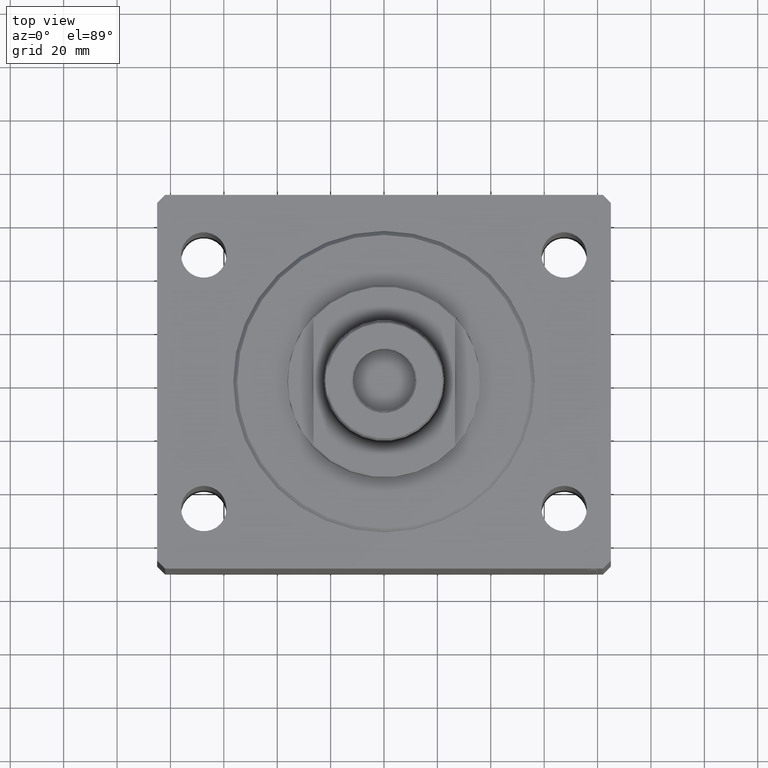
[diagram: clean part render]
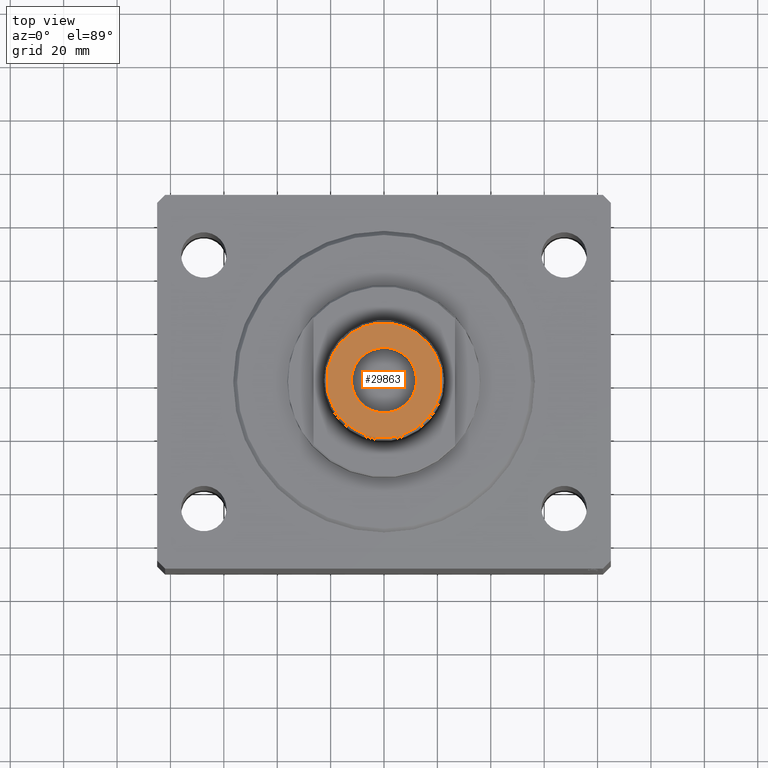
[diagram: same view with one face highlighted and labeled with its STEP entity id]
A machine part, top view. The second image highlights one B-rep face of the part: STEP entity #29863.
In plain terms, the highlighted planar face has unit normal (0, -0, 1).
Its self-contained STEP definition (entity closure, byte-faithful):
#153 = EDGE_CURVE ( 'NONE', #21452, #36592, #26354, .T. ) ;
#1114 = PLANE ( 'NONE',  #43194 ) ;
#3335 = EDGE_CURVE ( 'NONE', #11258, #27262, #42032, .T. ) ;
#4181 = EDGE_CURVE ( 'NONE', #11258, #29981, #43152, .T. ) ;
#6069 = DIRECTION ( 'NONE',  ( 1.000000000000000000, -0.000000000000000000, -0.000000000000000000 ) ) ;
#6117 = DIRECTION ( 'NONE',  ( 0.000000000000000000, 0.000000000000000000, -1.000000000000000000 ) ) ;
#6787 = EDGE_LOOP ( 'NONE', ( #29417, #23355, #8714, #17955 ) ) ;
#7364 = FACE_OUTER_BOUND ( 'NONE', #6787, .T. ) ;
#7537 = ORIENTED_EDGE ( 'NONE', *, *, #153, .T. ) ;
#7587 = DIRECTION ( 'NONE',  ( 1.000000000000000000, 0.000000000000000000, -0.000000000000000000 ) ) ;
#8714 = ORIENTED_EDGE ( 'NONE', *, *, #24355, .T. ) ;
#10436 = AXIS2_PLACEMENT_3D ( 'NONE', #26727, #30070, #40336 ) ;
#11258 = VERTEX_POINT ( 'NONE', #40930 ) ;
#11598 = DIRECTION ( 'NONE',  ( -0.000000000000000000, 0.000000000000000000, -1.000000000000000000 ) ) ;
#12031 = EDGE_CURVE ( 'NONE', #33867, #29981, #40039, .T. ) ;
#12110 = AXIS2_PLACEMENT_3D ( 'NONE', #27226, #6069, #19667 ) ;
#13701 = AXIS2_PLACEMENT_3D ( 'NONE', #39999, #23064, #6117 ) ;
#14137 = CARTESIAN_POINT ( 'NONE',  ( 0.000000000000000000, 4.609772228646120240, 21.00000000000000355 ) ) ;
#15108 = CARTESIAN_POINT ( 'NONE',  ( 0.000000000000000000, 0.000000000000000000, 21.00000000000000355 ) ) ;
#15522 = CARTESIAN_POINT ( 'NONE',  ( 0.000000000000000000, -7.916808551943042919E-15, 0.000000000000000000 ) ) ;
#17955 = ORIENTED_EDGE ( 'NONE', *, *, #12031, .T. ) ;
#18451 = DIRECTION ( 'NONE',  ( 0.000000000000000000, -1.000000000000000000, 0.000000000000000000 ) ) ;
#19667 = DIRECTION ( 'NONE',  ( 0.000000000000000000, 0.000000000000000000, -1.000000000000000000 ) ) ;
#19742 = DIRECTION ( 'NONE',  ( 0.000000000000000000, -1.000000000000000000, 0.000000000000000000 ) ) ;
#21452 = VERTEX_POINT ( 'NONE', #27168 ) ;
#23064 = DIRECTION ( 'NONE',  ( 1.000000000000000000, -0.000000000000000000, -0.000000000000000000 ) ) ;
#23355 = ORIENTED_EDGE ( 'NONE', *, *, #3335, .T. ) ;
#24244 = AXIS2_PLACEMENT_3D ( 'NONE', #15522, #42279, #42492 ) ;
#24355 = EDGE_CURVE ( 'NONE', #27262, #33867, #36999, .T. ) ;
#24586 = CARTESIAN_POINT ( 'NONE',  ( 0.000000000000000000, -4.609772228646120240, 21.00000000000000355 ) ) ;
#25380 = CIRCLE ( 'NONE', #10436, 12.25000000000001066 ) ;
#25764 = CARTESIAN_POINT ( 'NONE',  ( 0.000000000000000000, 0.000000000000000000, -21.00000000000000355 ) ) ;
#26151 = EDGE_LOOP ( 'NONE', ( #7537, #35243 ) ) ;
#26354 = CIRCLE ( 'NONE', #24244, 12.25000000000001066 ) ;
#26727 = CARTESIAN_POINT ( 'NONE',  ( 0.000000000000000000, -7.916808551943042919E-15, 0.000000000000000000 ) ) ;
#27168 = CARTESIAN_POINT ( 'NONE',  ( 0.000000000000000000, -7.916808551943042919E-15, -12.25000000000001066 ) ) ;
#27226 = CARTESIAN_POINT ( 'NONE',  ( 0.000000000000000000, 0.000000000000000000, 0.000000000000000000 ) ) ;
#27262 = VERTEX_POINT ( 'NONE', #14137 ) ;
#28294 = CARTESIAN_POINT ( 'NONE',  ( 0.000000000000000000, 0.000000000000000000, 0.000000000000000000 ) ) ;
#29417 = ORIENTED_EDGE ( 'NONE', *, *, #4181, .F. ) ;
#29771 = CARTESIAN_POINT ( 'NONE',  ( 0.000000000000000000, -4.609772228646120240, -21.00000000000000355 ) ) ;
#29863 = ADVANCED_FACE ( 'NONE', ( #7364, #31634 ), #1114, .T. ) ;
#29981 = VERTEX_POINT ( 'NONE', #29771 ) ;
#30070 = DIRECTION ( 'NONE',  ( -1.000000000000000000, 0.000000000000000000, 0.000000000000000000 ) ) ;
#30511 = CARTESIAN_POINT ( 'NONE',  ( 0.000000000000000000, -6.416616222987534199E-15, 12.25000000000001066 ) ) ;
#31634 = FACE_BOUND ( 'NONE', #26151, .T. ) ;
#32626 = VECTOR ( 'NONE', #18451, 1000.000000000000000 ) ;
#33867 = VERTEX_POINT ( 'NONE', #24586 ) ;
#35243 = ORIENTED_EDGE ( 'NONE', *, *, #36558, .T. ) ;
#36304 = VECTOR ( 'NONE', #19742, 1000.000000000000000 ) ;
#36558 = EDGE_CURVE ( 'NONE', #36592, #21452, #25380, .T. ) ;
#36592 = VERTEX_POINT ( 'NONE', #30511 ) ;
#36999 = LINE ( 'NONE', #15108, #32626 ) ;
#39999 = CARTESIAN_POINT ( 'NONE',  ( 0.000000000000000000, 0.000000000000000000, 0.000000000000000000 ) ) ;
#40039 = CIRCLE ( 'NONE', #13701, 21.49999999999993605 ) ;
#40336 = DIRECTION ( 'NONE',  ( 0.000000000000000000, 0.000000000000000000, -1.000000000000000000 ) ) ;
#40930 = CARTESIAN_POINT ( 'NONE',  ( 0.000000000000000000, 4.609772228646120240, -21.00000000000000355 ) ) ;
#42032 = CIRCLE ( 'NONE', #12110, 21.49999999999993605 ) ;
#42279 = DIRECTION ( 'NONE',  ( -1.000000000000000000, 0.000000000000000000, 0.000000000000000000 ) ) ;
#42492 = DIRECTION ( 'NONE',  ( 0.000000000000000000, 0.000000000000000000, -1.000000000000000000 ) ) ;
#43152 = LINE ( 'NONE', #25764, #36304 ) ;
#43194 = AXIS2_PLACEMENT_3D ( 'NONE', #28294, #7587, #11598 ) ;